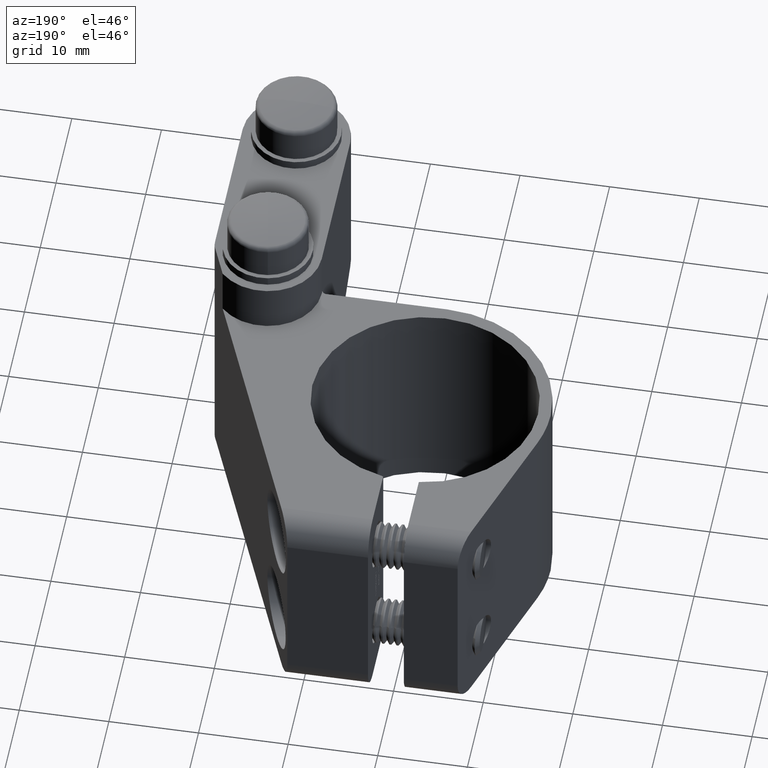
[diagram: clean part render]
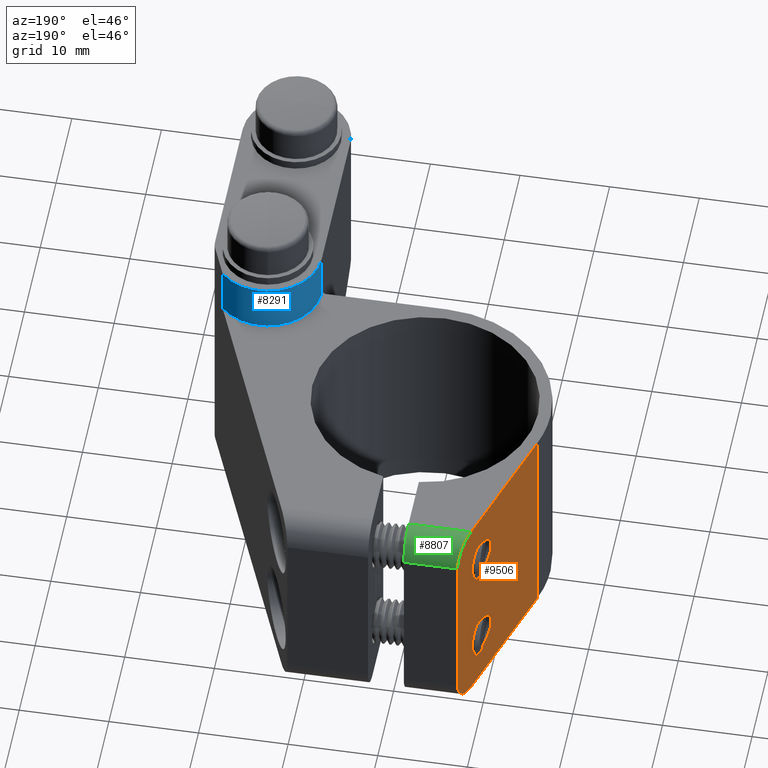
[diagram: same view with three faces highlighted in distinct colors, each labeled with its STEP entity id]
A machine part, auxiliary view with three faces highlighted in distinct colors.
Their STEP definitions:

[orange] entity #9506 — the highlighted planar face has unit normal (0.9499, -0.3125, 0).
#76 = CARTESIAN_POINT ( 'NONE',  ( -9.243767251367145800, 16.69999999999999900, 8.099999999999996100 ) ) ;
#178 = CARTESIAN_POINT ( 'NONE',  ( -13.29870318760959000, 4.375442095133101000, -12.25000000000000000 ) ) ;
#518 = EDGE_LOOP ( 'NONE', ( #11316, #10090 ) ) ;
#665 = ORIENTED_EDGE ( 'NONE', *, *, #5716, .F. ) ;
#837 = CARTESIAN_POINT ( 'NONE',  ( -7.500000000000002700, 21.99999999999999600, 12.25000000000000000 ) ) ;
#1234 = EDGE_CURVE ( 'NONE', #15466, #16385, #10787, .T. ) ;
#1615 = CARTESIAN_POINT ( 'NONE',  ( -9.243767251367145800, 16.69999999999999900, 3.900000000000004400 ) ) ;
#1676 = VECTOR ( 'NONE', #7030, 1000.000000000000200 ) ;
#2034 = VECTOR ( 'NONE', #10997, 1000.000000000000200 ) ;
#2065 = CARTESIAN_POINT ( 'NONE',  ( -9.243767251367145800, 16.69999999999999900, -3.900000000000004400 ) ) ;
#2347 = VERTEX_POINT ( 'NONE', #18656 ) ;
#2517 = CARTESIAN_POINT ( 'NONE',  ( -13.29870318760959000, 4.375442095133097500, 12.25000000000000000 ) ) ;
#2566 = CARTESIAN_POINT ( 'NONE',  ( -8.487038066811592800, 18.99999999999999600, -12.25000000000000000 ) ) ;
#2614 = ORIENTED_EDGE ( 'NONE', *, *, #3893, .T. ) ;
#2696 = CARTESIAN_POINT ( 'NONE',  ( -7.500000000000002700, 21.99999999999999600, 9.250000000000001800 ) ) ;
#2771 = CARTESIAN_POINT ( 'NONE',  ( -7.500000000000002700, 21.99999999999999600, -9.250000000000001800 ) ) ;
#2893 = ORIENTED_EDGE ( 'NONE', *, *, #10488, .T. ) ;
#3102 = CARTESIAN_POINT ( 'NONE',  ( -10.62562054490337200, 12.50000000000001100, 8.099999999999996100 ) ) ;
#3250 = CARTESIAN_POINT ( 'NONE',  ( -9.243767251367145800, 16.69999999999999900, -8.099999999999996100 ) ) ;
#3843 = VERTEX_POINT ( 'NONE', #16874 ) ;
#3880 = VERTEX_POINT ( 'NONE', #9063 ) ;
#3893 = EDGE_CURVE ( 'NONE', #16385, #15466, #9924, .T. ) ;
#4143 = CARTESIAN_POINT ( 'NONE',  ( -7.500000000000004400, 22.00000000000000400, -11.00735931288071400 ) ) ;
#4555 = CARTESIAN_POINT ( 'NONE',  ( -9.243767251367145800, 16.69999999999999900, 3.900000000000004400 ) ) ;
#5189 = CARTESIAN_POINT ( 'NONE',  ( -7.861913957830920700, 20.89999999999999100, -8.099999999999996100 ) ) ;
#5393 = CARTESIAN_POINT ( 'NONE',  ( -7.861913957830920700, 20.89999999999999100, -3.900000000000004400 ) ) ;
#5716 = EDGE_CURVE ( 'NONE', #16887, #3880, #7275, .T. ) ;
#6033 = LINE ( 'NONE', #837, #6730 ) ;
#6721 = CARTESIAN_POINT ( 'NONE',  ( -9.243767251367145800, 16.69999999999999900, 8.099999999999996100 ) ) ;
#6730 = VECTOR ( 'NONE', #14917, 1000.000000000000000 ) ;
#6909 =( BOUNDED_CURVE ( )  B_SPLINE_CURVE ( 3, ( #2065, #14614, #19277, #14554 ),
 .UNSPECIFIED., .F., .F. ) 
 B_SPLINE_CURVE_WITH_KNOTS ( ( 4, 4 ),
 ( 1.570796326794896600, 4.712388980384689700 ),
 .UNSPECIFIED. ) 
 CURVE ( )  GEOMETRIC_REPRESENTATION_ITEM ( )  RATIONAL_B_SPLINE_CURVE ( ( 1.000000000000000000, 0.3333333333333333700, 0.3333333333333333700, 1.000000000000000000 ) ) 
 REPRESENTATION_ITEM ( '' )  );
#7030 = DIRECTION ( 'NONE',  ( -0.3125315782237929100, -0.9499073705435415700, -0.0000000000000000000 ) ) ;
#7275 = LINE ( 'NONE', #12243, #7979 ) ;
#7391 = EDGE_LOOP ( 'NONE', ( #2614, #9371 ) ) ;
#7392 = CARTESIAN_POINT ( 'NONE',  ( -9.243767251367145800, 16.69999999999999900, 3.900000000000004400 ) ) ;
#7469 = ORIENTED_EDGE ( 'NONE', *, *, #15617, .T. ) ;
#7596 = VERTEX_POINT ( 'NONE', #2696 ) ;
#7651 = EDGE_CURVE ( 'NONE', #3843, #16887, #18667, .T. ) ;
#7690 = ORIENTED_EDGE ( 'NONE', *, *, #10018, .T. ) ;
#7840 = FACE_BOUND ( 'NONE', #7391, .T. ) ;
#7979 = VECTOR ( 'NONE', #13796, 1000.000000000000000 ) ;
#9063 = CARTESIAN_POINT ( 'NONE',  ( -13.29870318760959000, 4.375442095133097500, -12.25000000000000000 ) ) ;
#9317 = CARTESIAN_POINT ( 'NONE',  ( -9.243767251367145800, 16.69999999999999900, 8.099999999999996100 ) ) ;
#9371 = ORIENTED_EDGE ( 'NONE', *, *, #1234, .T. ) ;
#9506 = ADVANCED_FACE ( 'NONE', ( #7840, #13945, #18550 ), #19925, .F. ) ;
#9924 =( BOUNDED_CURVE ( )  B_SPLINE_CURVE ( 3, ( #4555, #15326, #16817, #9317 ),
 .UNSPECIFIED., .F., .F. ) 
 B_SPLINE_CURVE_WITH_KNOTS ( ( 4, 4 ),
 ( 4.712388980384689700, 7.853981633974482800 ),
 .UNSPECIFIED. ) 
 CURVE ( )  GEOMETRIC_REPRESENTATION_ITEM ( )  RATIONAL_B_SPLINE_CURVE ( ( 1.000000000000000000, 0.3333333333333333700, 0.3333333333333333700, 1.000000000000000000 ) ) 
 REPRESENTATION_ITEM ( '' )  );
#10018 = EDGE_CURVE ( 'NONE', #2347, #3880, #14885, .T. ) ;
#10090 = ORIENTED_EDGE ( 'NONE', *, *, #19347, .T. ) ;
#10209 = CARTESIAN_POINT ( 'NONE',  ( -7.500000000000002700, 21.99999999999999600, 9.250000000000001800 ) ) ;
#10422 = VERTEX_POINT ( 'NONE', #3250 ) ;
#10488 = EDGE_CURVE ( 'NONE', #3843, #7596, #19976, .T. ) ;
#10620 = CARTESIAN_POINT ( 'NONE',  ( -13.29870318760959000, 4.375442095133101000, 12.25000000000000000 ) ) ;
#10787 =( BOUNDED_CURVE ( )  B_SPLINE_CURVE ( 3, ( #76, #3102, #13841, #1615 ),
 .UNSPECIFIED., .F., .F. ) 
 B_SPLINE_CURVE_WITH_KNOTS ( ( 4, 4 ),
 ( 1.570796326794896600, 4.712388980384689700 ),
 .UNSPECIFIED. ) 
 CURVE ( )  GEOMETRIC_REPRESENTATION_ITEM ( )  RATIONAL_B_SPLINE_CURVE ( ( 1.000000000000000000, 0.3333333333333333700, 0.3333333333333333700, 1.000000000000000000 ) ) 
 REPRESENTATION_ITEM ( '' )  );
#10997 = DIRECTION ( 'NONE',  ( -0.3125315782237929100, -0.9499073705435415700, -0.0000000000000000000 ) ) ;
#11316 = ORIENTED_EDGE ( 'NONE', *, *, #15406, .T. ) ;
#11773 = CARTESIAN_POINT ( 'NONE',  ( -7.500000000000004400, 22.00000000000000400, 11.00735931288071400 ) ) ;
#11848 = CARTESIAN_POINT ( 'NONE',  ( -7.908844553851886300, 20.75735931288070900, 12.25000000000000400 ) ) ;
#12127 = EDGE_LOOP ( 'NONE', ( #12527, #2893, #7469, #15060, #7690, #665 ) ) ;
#12132 = EDGE_CURVE ( 'NONE', #18190, #2347, #12180, .T. ) ;
#12180 =( BOUNDED_CURVE ( )  B_SPLINE_CURVE ( 3, ( #2771, #4143, #15173, #2566 ),
 .UNSPECIFIED., .F., .F. ) 
 B_SPLINE_CURVE_WITH_KNOTS ( ( 4, 4 ),
 ( 3.141592653589793100, 4.712388980384689700 ),
 .UNSPECIFIED. ) 
 CURVE ( )  GEOMETRIC_REPRESENTATION_ITEM ( )  RATIONAL_B_SPLINE_CURVE ( ( 1.000000000000000000, 0.8047378541243649400, 0.8047378541243649400, 1.000000000000000000 ) ) 
 REPRESENTATION_ITEM ( '' )  );
#12243 = CARTESIAN_POINT ( 'NONE',  ( -13.29870318760959000, 4.375442095133097500, 12.25000000000000000 ) ) ;
#12407 = DIRECTION ( 'NONE',  ( 0.3125315782237929100, 0.9499073705435415700, 0.0000000000000000000 ) ) ;
#12527 = ORIENTED_EDGE ( 'NONE', *, *, #7651, .F. ) ;
#13557 = CARTESIAN_POINT ( 'NONE',  ( -13.29870318760959000, 4.375442095133101000, 12.25000000000000000 ) ) ;
#13796 = DIRECTION ( 'NONE',  ( -0.0000000000000000000, -0.0000000000000000000, -1.000000000000000000 ) ) ;
#13841 = CARTESIAN_POINT ( 'NONE',  ( -10.62562054490337200, 12.50000000000001100, 3.900000000000005200 ) ) ;
#13945 = FACE_BOUND ( 'NONE', #518, .T. ) ;
#14554 = CARTESIAN_POINT ( 'NONE',  ( -9.243767251367145800, 16.69999999999999900, -8.099999999999996100 ) ) ;
#14614 = CARTESIAN_POINT ( 'NONE',  ( -10.62562054490337200, 12.50000000000001100, -3.900000000000003900 ) ) ;
#14885 = LINE ( 'NONE', #178, #2034 ) ;
#14917 = DIRECTION ( 'NONE',  ( -0.0000000000000000000, -0.0000000000000000000, -1.000000000000000000 ) ) ;
#15007 =( BOUNDED_CURVE ( )  B_SPLINE_CURVE ( 3, ( #17780, #5189, #5393, #16025 ),
 .UNSPECIFIED., .F., .F. ) 
 B_SPLINE_CURVE_WITH_KNOTS ( ( 4, 4 ),
 ( 4.712388980384689700, 7.853981633974482800 ),
 .UNSPECIFIED. ) 
 CURVE ( )  GEOMETRIC_REPRESENTATION_ITEM ( )  RATIONAL_B_SPLINE_CURVE ( ( 1.000000000000000000, 0.3333333333333333700, 0.3333333333333333700, 1.000000000000000000 ) ) 
 REPRESENTATION_ITEM ( '' )  );
#15060 = ORIENTED_EDGE ( 'NONE', *, *, #12132, .T. ) ;
#15173 = CARTESIAN_POINT ( 'NONE',  ( -7.908844553851886300, 20.75735931288070900, -12.25000000000000400 ) ) ;
#15326 = CARTESIAN_POINT ( 'NONE',  ( -7.861913957830920700, 20.89999999999999100, 3.900000000000003000 ) ) ;
#15406 = EDGE_CURVE ( 'NONE', #10422, #16412, #15007, .T. ) ;
#15466 = VERTEX_POINT ( 'NONE', #6721 ) ;
#15617 = EDGE_CURVE ( 'NONE', #7596, #18190, #6033, .T. ) ;
#16025 = CARTESIAN_POINT ( 'NONE',  ( -9.243767251367145800, 16.69999999999999900, -3.900000000000004400 ) ) ;
#16385 = VERTEX_POINT ( 'NONE', #7392 ) ;
#16412 = VERTEX_POINT ( 'NONE', #16622 ) ;
#16622 = CARTESIAN_POINT ( 'NONE',  ( -9.243767251367145800, 16.69999999999999900, -3.900000000000004400 ) ) ;
#16817 = CARTESIAN_POINT ( 'NONE',  ( -7.861913957830920700, 20.89999999999999100, 8.099999999999996100 ) ) ;
#16874 = CARTESIAN_POINT ( 'NONE',  ( -8.487038066811592800, 18.99999999999999600, 12.25000000000000000 ) ) ;
#16887 = VERTEX_POINT ( 'NONE', #2517 ) ;
#17070 = AXIS2_PLACEMENT_3D ( 'NONE', #10620, #17075, #12407 ) ;
#17075 = DIRECTION ( 'NONE',  ( 0.9499073705435416800, -0.3125315782237929600, 0.0000000000000000000 ) ) ;
#17780 = CARTESIAN_POINT ( 'NONE',  ( -9.243767251367145800, 16.69999999999999900, -8.099999999999996100 ) ) ;
#18190 = VERTEX_POINT ( 'NONE', #18999 ) ;
#18550 = FACE_OUTER_BOUND ( 'NONE', #12127, .T. ) ;
#18656 = CARTESIAN_POINT ( 'NONE',  ( -8.487038066811592800, 18.99999999999999600, -12.25000000000000000 ) ) ;
#18667 = LINE ( 'NONE', #13557, #1676 ) ;
#18999 = CARTESIAN_POINT ( 'NONE',  ( -7.500000000000002700, 21.99999999999999600, -9.250000000000001800 ) ) ;
#19277 = CARTESIAN_POINT ( 'NONE',  ( -10.62562054490337200, 12.50000000000001100, -8.099999999999996100 ) ) ;
#19347 = EDGE_CURVE ( 'NONE', #16412, #10422, #6909, .T. ) ;
#19493 = CARTESIAN_POINT ( 'NONE',  ( -8.487038066811592800, 18.99999999999999600, 12.25000000000000000 ) ) ;
#19925 = PLANE ( 'NONE',  #17070 ) ;
#19976 =( BOUNDED_CURVE ( )  B_SPLINE_CURVE ( 3, ( #19493, #11848, #11773, #10209 ),
 .UNSPECIFIED., .F., .F. ) 
 B_SPLINE_CURVE_WITH_KNOTS ( ( 4, 4 ),
 ( 4.712388980384689700, 6.283185307179586200 ),
 .UNSPECIFIED. ) 
 CURVE ( )  GEOMETRIC_REPRESENTATION_ITEM ( )  RATIONAL_B_SPLINE_CURVE ( ( 1.000000000000000000, 0.8047378541243649400, 0.8047378541243649400, 1.000000000000000000 ) ) 
 REPRESENTATION_ITEM ( '' )  );

[blue] entity #8291 — the highlighted cylindrical surface (partial cylindrical patch) has radius 6 mm, axis along (-0, -0, -1).
#1767 = ORIENTED_EDGE ( 'NONE', *, *, #7195, .F. ) ;
#2520 = EDGE_CURVE ( 'NONE', #5431, #3105, #19714, .T. ) ;
#2742 = DIRECTION ( 'NONE',  ( -1.000000000000000000, 0.0000000000000000000, 0.0000000000000000000 ) ) ;
#2922 = CARTESIAN_POINT ( 'NONE',  ( 20.00000000000000400, -14.00000000000000000, 17.75000000000000400 ) ) ;
#3105 = VERTEX_POINT ( 'NONE', #18213 ) ;
#5431 = VERTEX_POINT ( 'NONE', #12995 ) ;
#5617 = CARTESIAN_POINT ( 'NONE',  ( 20.00000000000000400, -14.00000000000000000, 17.75000000000000400 ) ) ;
#5928 = DIRECTION ( 'NONE',  ( 0.0000000000000000000, 0.0000000000000000000, 1.000000000000000000 ) ) ;
#6212 = CARTESIAN_POINT ( 'NONE',  ( 14.00000000000000500, -14.00000000000000000, 17.75000000000000400 ) ) ;
#6411 = AXIS2_PLACEMENT_3D ( 'NONE', #14337, #11198, #14262 ) ;
#7195 = EDGE_CURVE ( 'NONE', #5431, #19259, #14300, .T. ) ;
#7911 = VECTOR ( 'NONE', #16997, 1000.000000000000000 ) ;
#8291 = ADVANCED_FACE ( 'NONE', ( #15004 ), #14524, .T. ) ;
#9041 = CARTESIAN_POINT ( 'NONE',  ( 14.00000000000000500, -14.00000000000000000, 17.75000000000000400 ) ) ;
#10615 = CARTESIAN_POINT ( 'NONE',  ( 24.32497925311203300, -9.841327800829875000, 17.75000000000000400 ) ) ;
#10937 = AXIS2_PLACEMENT_3D ( 'NONE', #2922, #5928, #16756 ) ;
#11135 = VERTEX_POINT ( 'NONE', #18893 ) ;
#11198 = DIRECTION ( 'NONE',  ( 0.0000000000000000000, 0.0000000000000000000, 1.000000000000000000 ) ) ;
#11817 = ORIENTED_EDGE ( 'NONE', *, *, #15345, .T. ) ;
#12106 = CIRCLE ( 'NONE', #6411, 5.999999999999998200 ) ;
#12323 = ORIENTED_EDGE ( 'NONE', *, *, #2520, .T. ) ;
#12453 = EDGE_LOOP ( 'NONE', ( #11817, #12985, #1767, #12323 ) ) ;
#12985 = ORIENTED_EDGE ( 'NONE', *, *, #16033, .F. ) ;
#12995 = CARTESIAN_POINT ( 'NONE',  ( 24.32497925311203300, -9.841327800829875000, 17.75000000000000400 ) ) ;
#13700 = AXIS2_PLACEMENT_3D ( 'NONE', #5617, #17998, #2742 ) ;
#14251 = LINE ( 'NONE', #6212, #7911 ) ;
#14262 = DIRECTION ( 'NONE',  ( -1.000000000000000000, 0.0000000000000000000, 0.0000000000000000000 ) ) ;
#14300 = CIRCLE ( 'NONE', #10937, 5.999999999999998200 ) ;
#14337 = CARTESIAN_POINT ( 'NONE',  ( 20.00000000000000400, -14.00000000000000000, 12.25000000000000000 ) ) ;
#14524 = CYLINDRICAL_SURFACE ( 'NONE', #13700, 5.999999999999998200 ) ;
#15004 = FACE_OUTER_BOUND ( 'NONE', #12453, .T. ) ;
#15345 = EDGE_CURVE ( 'NONE', #3105, #11135, #12106, .T. ) ;
#15373 = VECTOR ( 'NONE', #18443, 1000.000000000000000 ) ;
#16033 = EDGE_CURVE ( 'NONE', #19259, #11135, #14251, .T. ) ;
#16756 = DIRECTION ( 'NONE',  ( -1.000000000000000000, 0.0000000000000000000, 0.0000000000000000000 ) ) ;
#16997 = DIRECTION ( 'NONE',  ( -0.0000000000000000000, -0.0000000000000000000, -1.000000000000000000 ) ) ;
#17998 = DIRECTION ( 'NONE',  ( -0.0000000000000000000, -0.0000000000000000000, -1.000000000000000000 ) ) ;
#18213 = CARTESIAN_POINT ( 'NONE',  ( 24.32497925311203300, -9.841327800829875000, 12.25000000000000000 ) ) ;
#18443 = DIRECTION ( 'NONE',  ( -0.0000000000000000000, -0.0000000000000000000, -1.000000000000000000 ) ) ;
#18893 = CARTESIAN_POINT ( 'NONE',  ( 14.00000000000000500, -14.00000000000000000, 12.25000000000000000 ) ) ;
#19259 = VERTEX_POINT ( 'NONE', #9041 ) ;
#19714 = LINE ( 'NONE', #10615, #15373 ) ;

[green] entity #8807 — the highlighted cylindrical surface (edge-blend (fillet) strip) has radius 3 mm, axis along (1, 0, 0).
#62 = LINE ( 'NONE', #9856, #5651 ) ;
#514 = DIRECTION ( 'NONE',  ( 0.0000000000000000000, 0.0000000000000000000, -1.000000000000000000 ) ) ;
#530 = EDGE_CURVE ( 'NONE', #17883, #6907, #3542, .T. ) ;
#678 = CARTESIAN_POINT ( 'NONE',  ( -1.500000000000002200, 21.99999999999999600, 9.250000000000001800 ) ) ;
#1139 = EDGE_LOOP ( 'NONE', ( #2153, #6482, #1914, #14052 ) ) ;
#1914 = ORIENTED_EDGE ( 'NONE', *, *, #10488, .F. ) ;
#2153 = ORIENTED_EDGE ( 'NONE', *, *, #530, .F. ) ;
#2696 = CARTESIAN_POINT ( 'NONE',  ( -7.500000000000002700, 21.99999999999999600, 9.250000000000001800 ) ) ;
#3542 = CIRCLE ( 'NONE', #16804, 2.999999999999999100 ) ;
#3717 = DIRECTION ( 'NONE',  ( 1.000000000000000000, -0.0000000000000000000, -0.0000000000000000000 ) ) ;
#3843 = VERTEX_POINT ( 'NONE', #16874 ) ;
#4433 = EDGE_CURVE ( 'NONE', #6907, #3843, #62, .T. ) ;
#5063 = DIRECTION ( 'NONE',  ( 1.000000000000000000, 0.0000000000000000000, -0.0000000000000000000 ) ) ;
#5136 = CARTESIAN_POINT ( 'NONE',  ( 0.0000000000000000000, 18.99999999999999600, 9.250000000000001800 ) ) ;
#5651 = VECTOR ( 'NONE', #15985, 1000.000000000000000 ) ;
#6482 = ORIENTED_EDGE ( 'NONE', *, *, #7522, .F. ) ;
#6907 = VERTEX_POINT ( 'NONE', #13687 ) ;
#7522 = EDGE_CURVE ( 'NONE', #7596, #17883, #13089, .T. ) ;
#7596 = VERTEX_POINT ( 'NONE', #2696 ) ;
#8807 = ADVANCED_FACE ( 'NONE', ( #11348 ), #11605, .T. ) ;
#9499 = DIRECTION ( 'NONE',  ( 1.000000000000000000, 9.140125430773481600E-017, -0.0000000000000000000 ) ) ;
#9856 = CARTESIAN_POINT ( 'NONE',  ( -7.500000000000002700, 18.99999999999999600, 12.25000000000000000 ) ) ;
#10209 = CARTESIAN_POINT ( 'NONE',  ( -7.500000000000002700, 21.99999999999999600, 9.250000000000001800 ) ) ;
#10488 = EDGE_CURVE ( 'NONE', #3843, #7596, #19976, .T. ) ;
#11348 = FACE_OUTER_BOUND ( 'NONE', #1139, .T. ) ;
#11605 = CYLINDRICAL_SURFACE ( 'NONE', #12167, 3.000000000000000000 ) ;
#11773 = CARTESIAN_POINT ( 'NONE',  ( -7.500000000000004400, 22.00000000000000400, 11.00735931288071400 ) ) ;
#11848 = CARTESIAN_POINT ( 'NONE',  ( -7.908844553851886300, 20.75735931288070900, 12.25000000000000400 ) ) ;
#12167 = AXIS2_PLACEMENT_3D ( 'NONE', #5136, #5063, #514 ) ;
#13089 = LINE ( 'NONE', #678, #15515 ) ;
#13687 = CARTESIAN_POINT ( 'NONE',  ( -1.500000000000002000, 18.99999999999999600, 12.25000000000000000 ) ) ;
#14052 = ORIENTED_EDGE ( 'NONE', *, *, #4433, .F. ) ;
#15515 = VECTOR ( 'NONE', #3717, 1000.000000000000000 ) ;
#15897 = DIRECTION ( 'NONE',  ( 7.228014483236698300E-017, -1.000000000000000000, 0.0000000000000000000 ) ) ;
#15985 = DIRECTION ( 'NONE',  ( -1.000000000000000000, 0.0000000000000000000, 0.0000000000000000000 ) ) ;
#16804 = AXIS2_PLACEMENT_3D ( 'NONE', #17253, #9499, #15897 ) ;
#16874 = CARTESIAN_POINT ( 'NONE',  ( -8.487038066811592800, 18.99999999999999600, 12.25000000000000000 ) ) ;
#17253 = CARTESIAN_POINT ( 'NONE',  ( -1.500000000000002000, 18.99999999999999600, 9.250000000000001800 ) ) ;
#17883 = VERTEX_POINT ( 'NONE', #18004 ) ;
#18004 = CARTESIAN_POINT ( 'NONE',  ( -1.500000000000002200, 21.99999999999999600, 9.250000000000001800 ) ) ;
#19493 = CARTESIAN_POINT ( 'NONE',  ( -8.487038066811592800, 18.99999999999999600, 12.25000000000000000 ) ) ;
#19976 =( BOUNDED_CURVE ( )  B_SPLINE_CURVE ( 3, ( #19493, #11848, #11773, #10209 ),
 .UNSPECIFIED., .F., .F. ) 
 B_SPLINE_CURVE_WITH_KNOTS ( ( 4, 4 ),
 ( 4.712388980384689700, 6.283185307179586200 ),
 .UNSPECIFIED. ) 
 CURVE ( )  GEOMETRIC_REPRESENTATION_ITEM ( )  RATIONAL_B_SPLINE_CURVE ( ( 1.000000000000000000, 0.8047378541243649400, 0.8047378541243649400, 1.000000000000000000 ) ) 
 REPRESENTATION_ITEM ( '' )  );